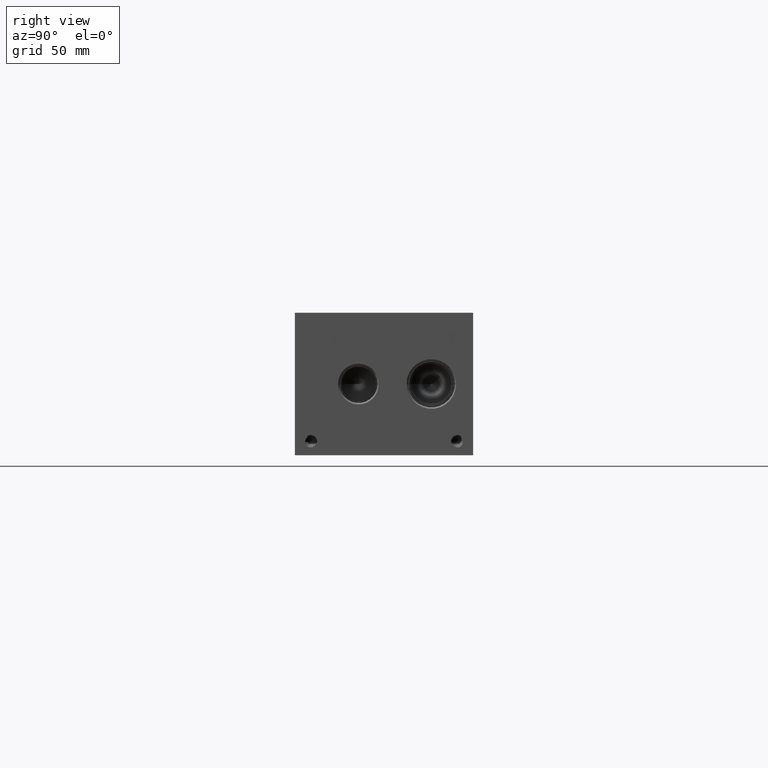
[diagram: clean part render]
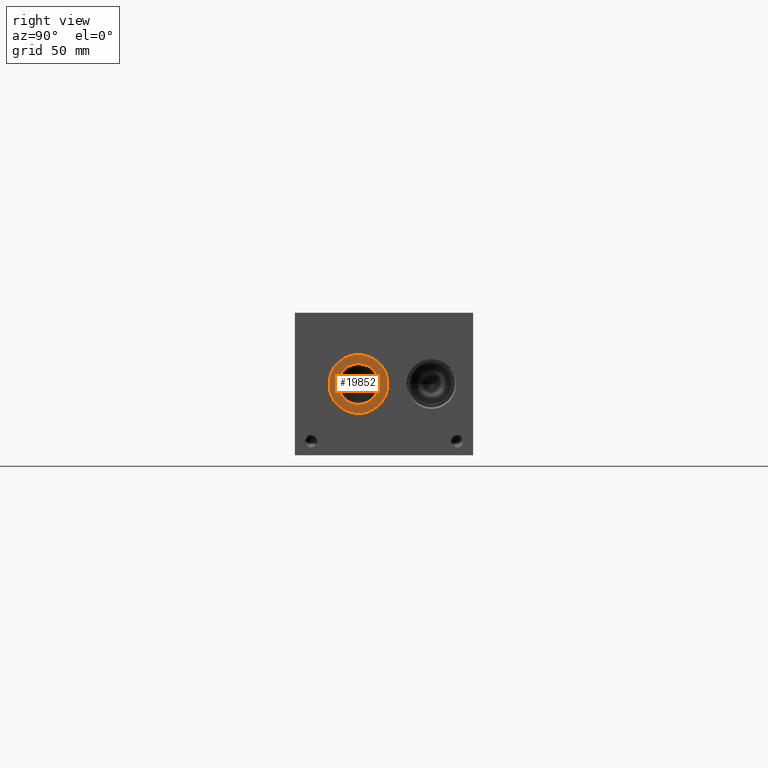
[diagram: same view with one face highlighted and labeled with its STEP entity id]
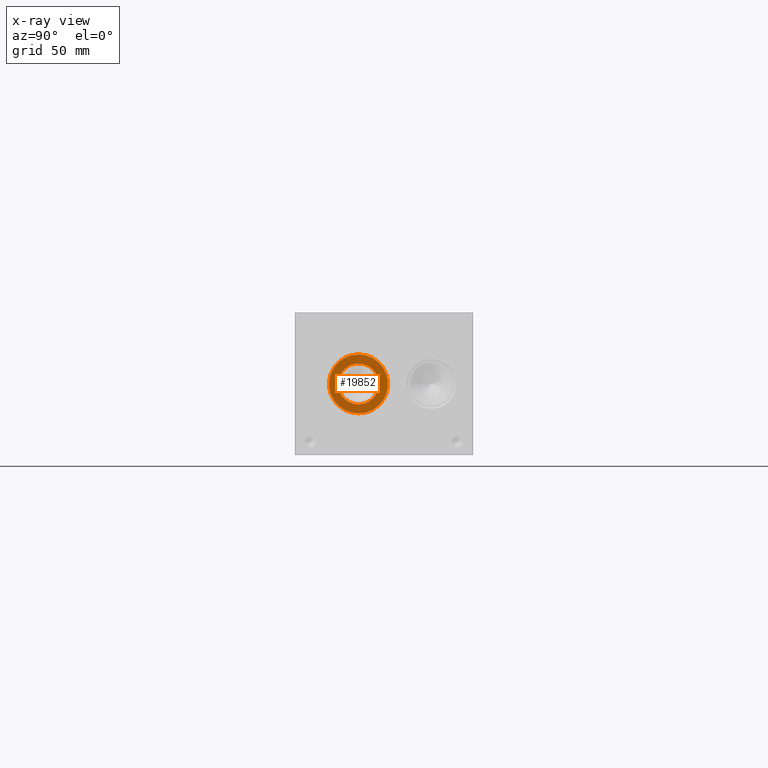
[diagram: x-ray of the same camera — body ghosted, the highlighted face saturated]
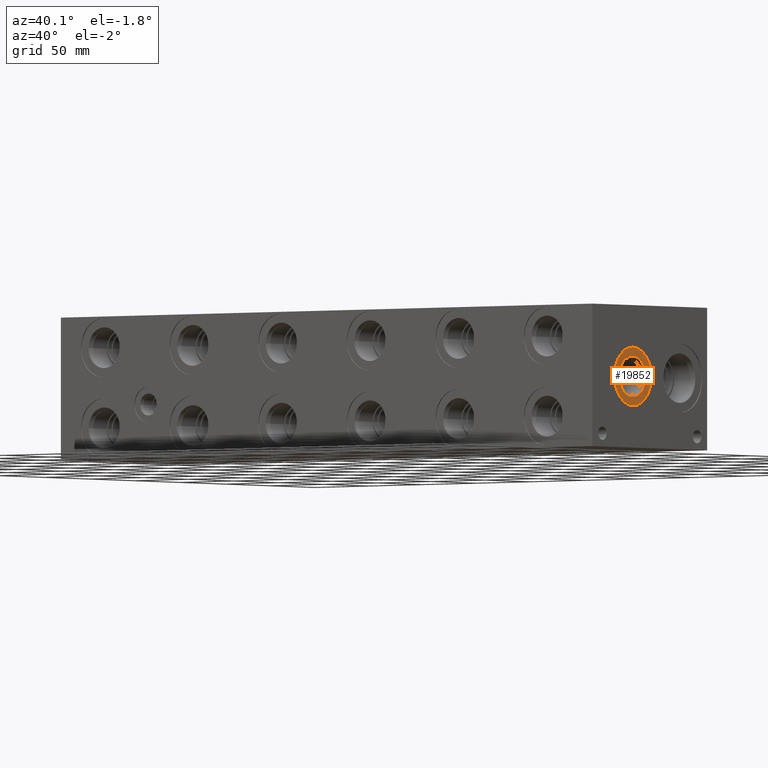
[diagram: same view with one face highlighted and labeled with its STEP entity id]
A machine part, right view. The second image highlights one B-rep face of the part: STEP entity #19852.
The next image is the same camera in x-ray: the body ghosted, the highlighted face saturated — about 0% of this face is hidden behind the body in this view.
A second angle (auxiliary view) of the same face is appended — the face is thin or edge-on in the first view.
In plain terms, the highlighted planar face has unit normal (-1, 0, 0).
Its self-contained STEP definition (entity closure, byte-faithful):
#718=CIRCLE('',#20835,21.0185);
#719=CIRCLE('',#20836,21.0185);
#720=CIRCLE('',#20838,14.5923);
#721=CIRCLE('',#20839,14.5923);
#1796=FACE_BOUND('',#3806,.T.);
#2649=FACE_OUTER_BOUND('',#3805,.T.);
#3805=EDGE_LOOP('',(#16409,#16410));
#3806=EDGE_LOOP('',(#16411,#16412));
#8956=VERTEX_POINT('',#33626);
#8957=VERTEX_POINT('',#33628);
#8958=VERTEX_POINT('',#33632);
#8959=VERTEX_POINT('',#33633);
#11584=EDGE_CURVE('',#8956,#8957,#718,.T.);
#11585=EDGE_CURVE('',#8957,#8956,#719,.T.);
#11586=EDGE_CURVE('',#8958,#8959,#720,.T.);
#11587=EDGE_CURVE('',#8959,#8958,#721,.T.);
#16409=ORIENTED_EDGE('',*,*,#11585,.F.);
#16410=ORIENTED_EDGE('',*,*,#11584,.F.);
#16411=ORIENTED_EDGE('',*,*,#11586,.T.);
#16412=ORIENTED_EDGE('',*,*,#11587,.T.);
#18385=PLANE('',#20837);
#19852=ADVANCED_FACE('',(#2649,#1796),#18385,.F.);
#20835=AXIS2_PLACEMENT_3D('',#33629,#24386,#24387);
#20836=AXIS2_PLACEMENT_3D('',#33630,#24388,#24389);
#20837=AXIS2_PLACEMENT_3D('',#33631,#24390,#24391);
#20838=AXIS2_PLACEMENT_3D('',#33634,#24392,#24393);
#20839=AXIS2_PLACEMENT_3D('',#33635,#24394,#24395);
#24386=DIRECTION('center_axis',(-1.,0.,0.));
#24387=DIRECTION('ref_axis',(0.,0.,1.));
#24388=DIRECTION('center_axis',(-1.,0.,0.));
#24389=DIRECTION('ref_axis',(0.,0.,1.));
#24390=DIRECTION('center_axis',(-1.,0.,0.));
#24391=DIRECTION('ref_axis',(0.,0.,1.));
#24392=DIRECTION('center_axis',(-1.,0.,0.));
#24393=DIRECTION('ref_axis',(0.,0.,1.));
#24394=DIRECTION('center_axis',(-1.,0.,0.));
#24395=DIRECTION('ref_axis',(0.,0.,1.));
#33626=CARTESIAN_POINT('',(494.5126,45.2882,71.8185));
#33628=CARTESIAN_POINT('',(494.5126,45.2882,29.7815));
#33629=CARTESIAN_POINT('Origin',(494.5126,45.2882,50.8));
#33630=CARTESIAN_POINT('Origin',(494.5126,45.2882,50.8));
#33631=CARTESIAN_POINT('Origin',(494.5126,45.2882,36.2077));
#33632=CARTESIAN_POINT('',(494.5126,45.2882,36.2077));
#33633=CARTESIAN_POINT('',(494.5126,45.2882,65.3923));
#33634=CARTESIAN_POINT('Origin',(494.5126,45.2882,50.8));
#33635=CARTESIAN_POINT('Origin',(494.5126,45.2882,50.8));